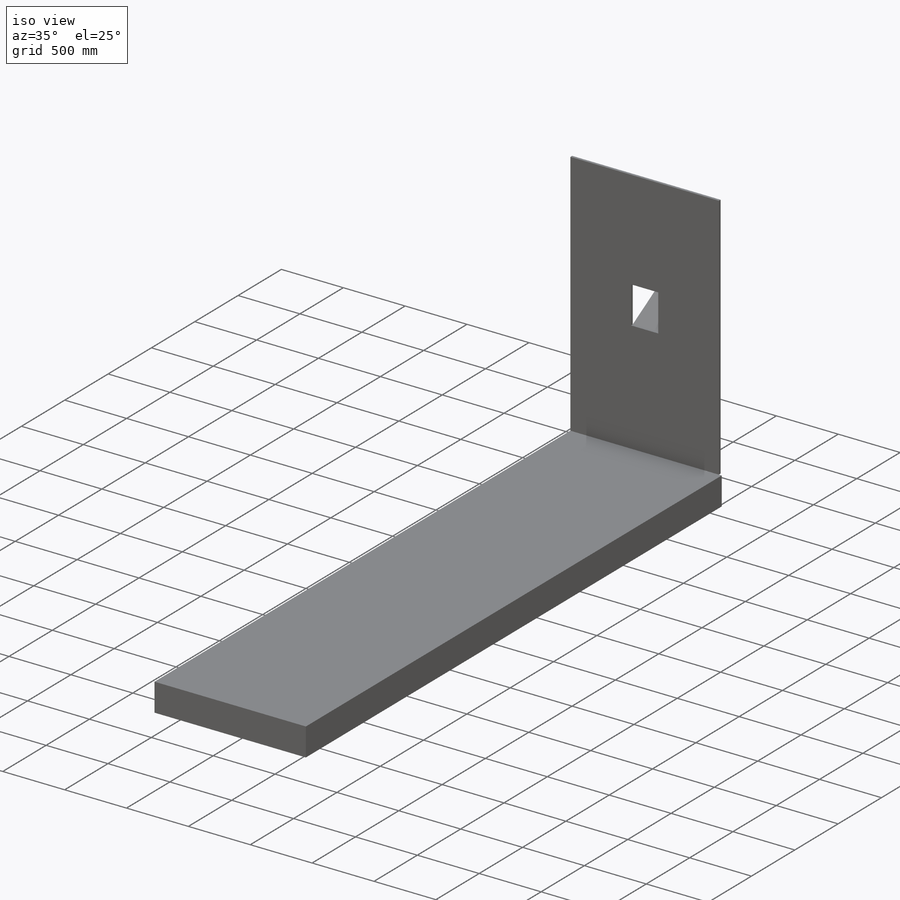
[diagram: iso view]
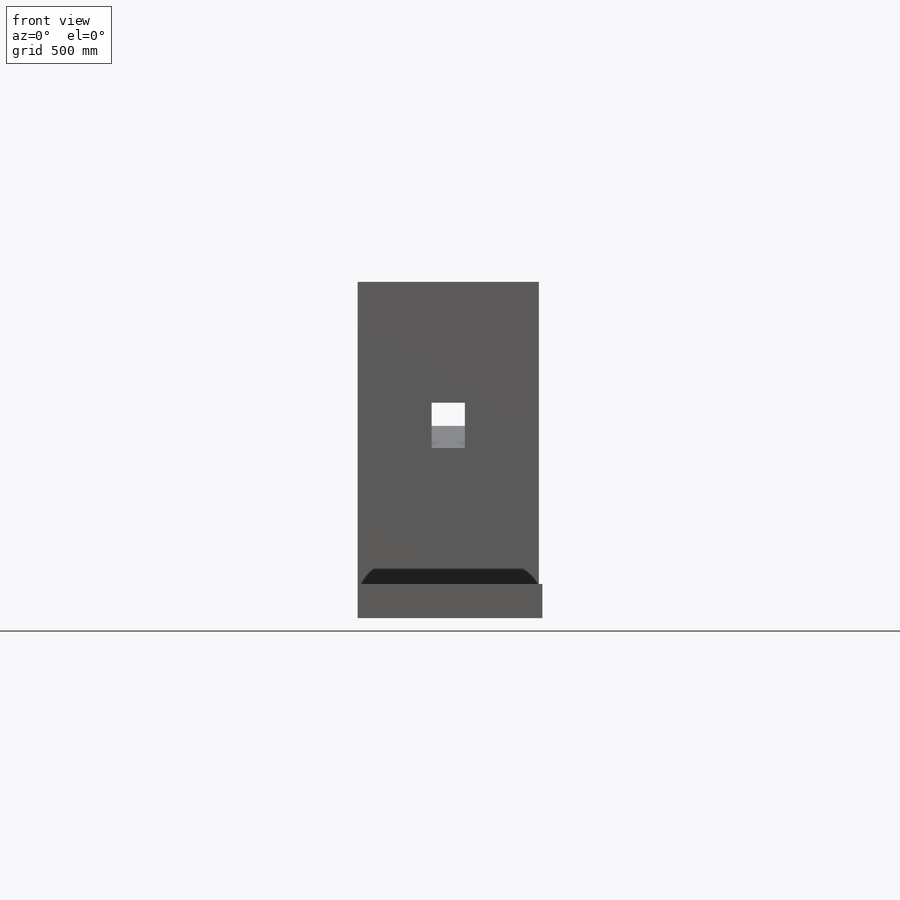
[diagram: front view]
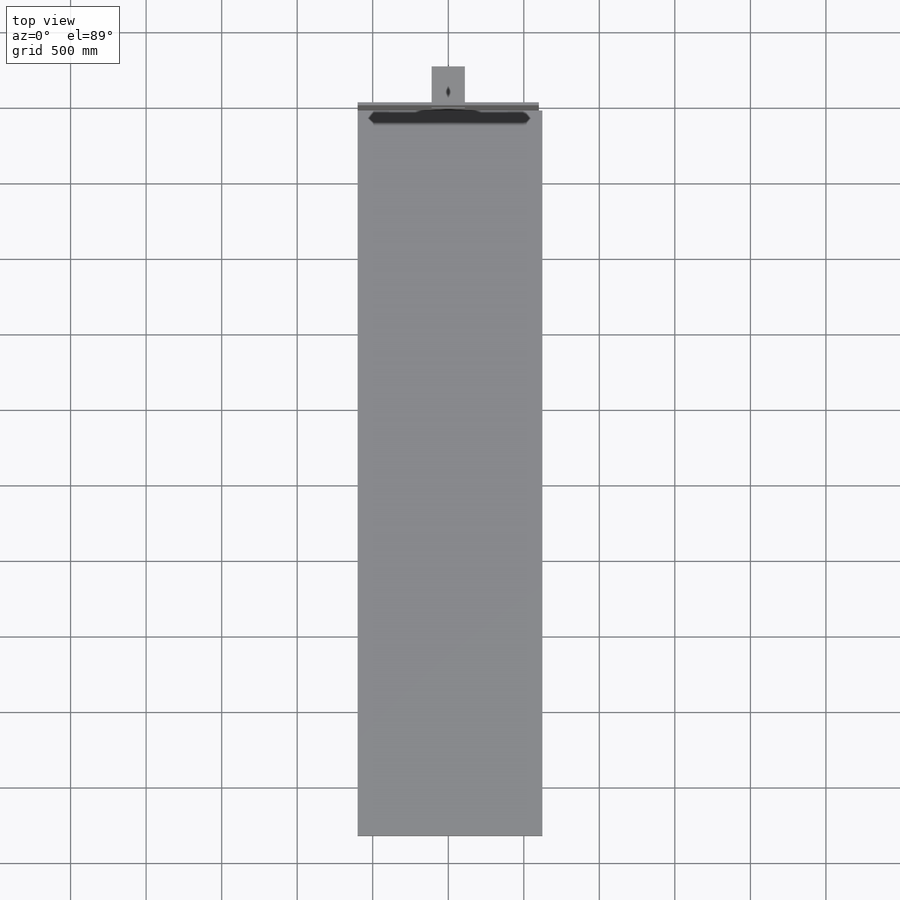
[diagram: top view]
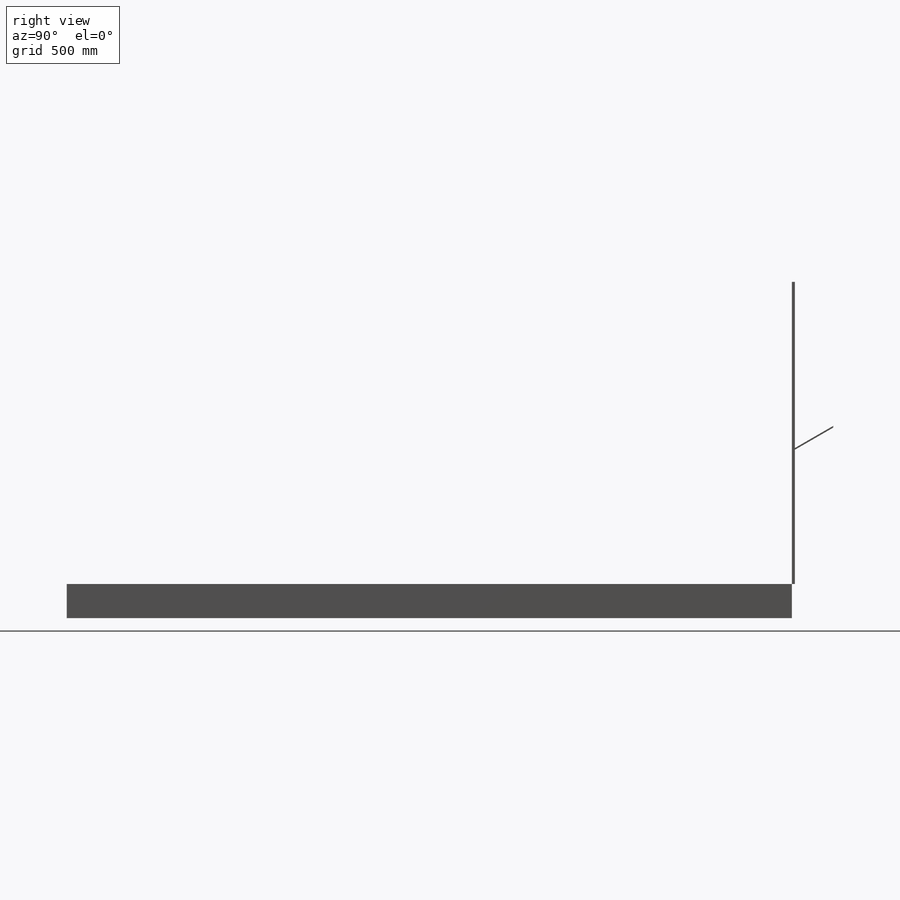
[diagram: right view]
SOLIDWORKS PART (.sldprt)
format: sldprt  version: not decoded by parser v0  size: 356,864 bytes
history: native  units: mm
features: sketch x4, extrude x3, material x1, cut_extrude x1, plane x1 (+13 scaffold rows collapsed)
feature tree (23):
  scaffold x13  (default folders/planes/origin — collapsed)
  material  "Mahogany"
  sketch  "Sketch1"  dims[D1=2000.0mm D2=1200.0mm]
  extrude  "Boss-Extrude1"  Depth=20mm
  sketch  "Sketch3"  dims[D1=300.0mm D2=220.0mm D3=900.0mm]
  cut_extrude  "Cut-Extrude1"  [1 undecoded]
  sketch  "Sketch4"  dims[c1.D1=254.0mm c1.D2=~206.766618mm c2.D2=60.0deg c2.D3=10.0mm]
  extrude  "Boss-Extrude2"  Depth=220mm
  plane  "Plane1"
  sketch  "Sketch7"
  extrude  "Boss-Extrude3"  Depth=4799.571529mm
decode coverage: 6 of 8 modeling features carry decoded parameters
note: ~ marks probable driven/reference dimensions
note: 1 parameter value undecoded
note: suppression state not decoded; provenance and decode notes live in map.json
